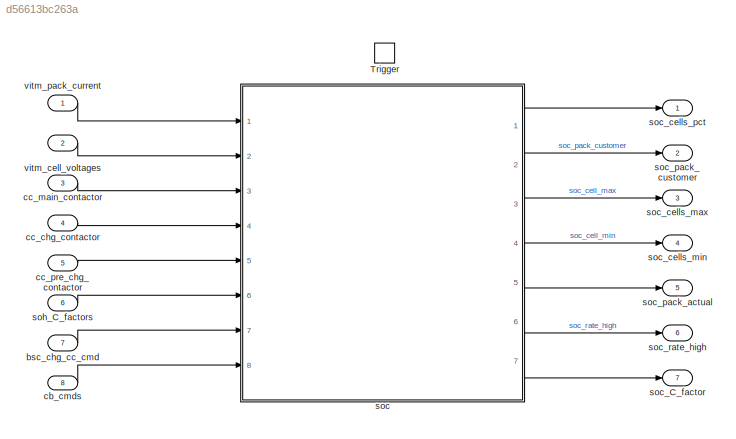
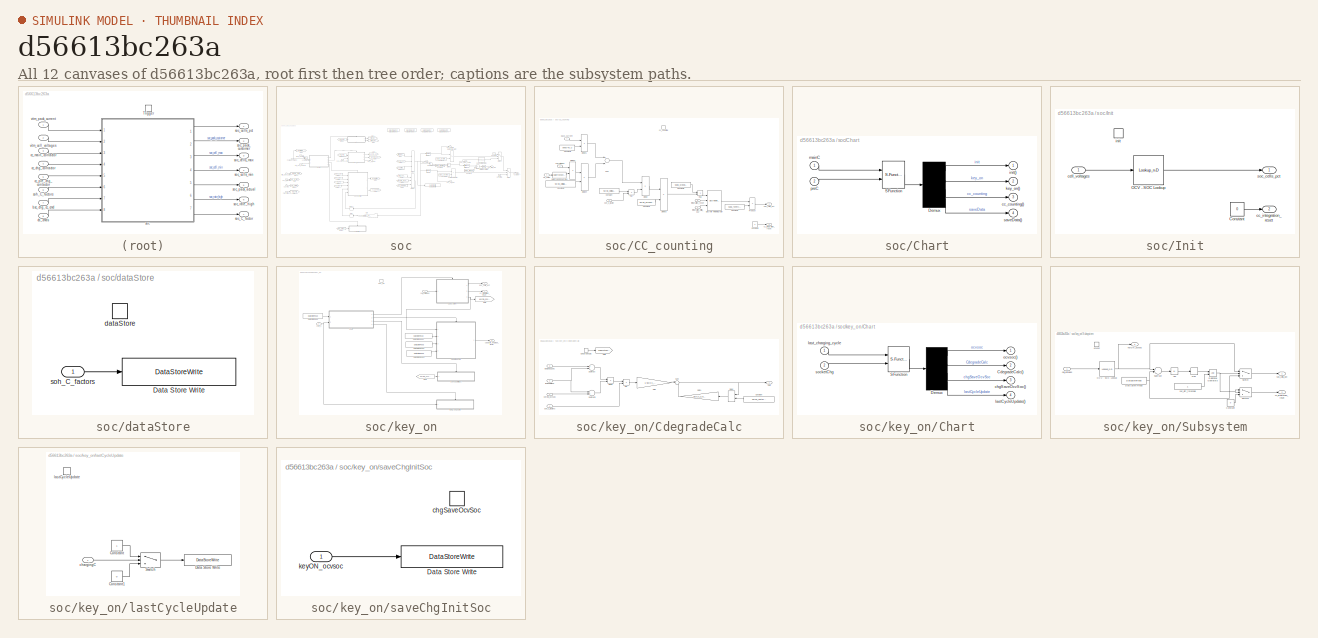
[diagram: thumbnail index - all 12 canvases of the model, root first then tree order]
MODEL slx_d56613bc263a
KIND model
CONFIG AbsTol = auto
CONFIG FixedStep = 0.01
CONFIG MaxStep = auto
CONFIG MinStep = auto
CONFIG RelTol = 1e-3
CONFIG SampleTimeConstraint = Unconstrained
CONFIG Solver = ode4
CONFIG SolverMode = Auto
CONFIG SolverName = ode4
CONFIG StartTime = 0.0
CONFIG StopTime = 10.0
BLOCK [TriggerPort] Trigger
  PortDimensions = 1
  Ports = []
  StatesWhenEnabling = held
  TriggerType = function-call
BLOCK [Inport] bsc_chg_cc_cmd
  IconDisplay = Port number
  Port = 7
BLOCK [Inport] cb_cmds
  IconDisplay = Port number
  OutDataTypeStr = boolean
  Port = 8
  PortDimensions = 40
BLOCK [Inport] cc_chg_contactor
  IconDisplay = Port number
  Port = 4
BLOCK [Inport] cc_main_contactor
  IconDisplay = Port number
  Port = 3
BLOCK [Inport] cc_pre_chg_contactor
  IconDisplay = Port number
  Port = 5
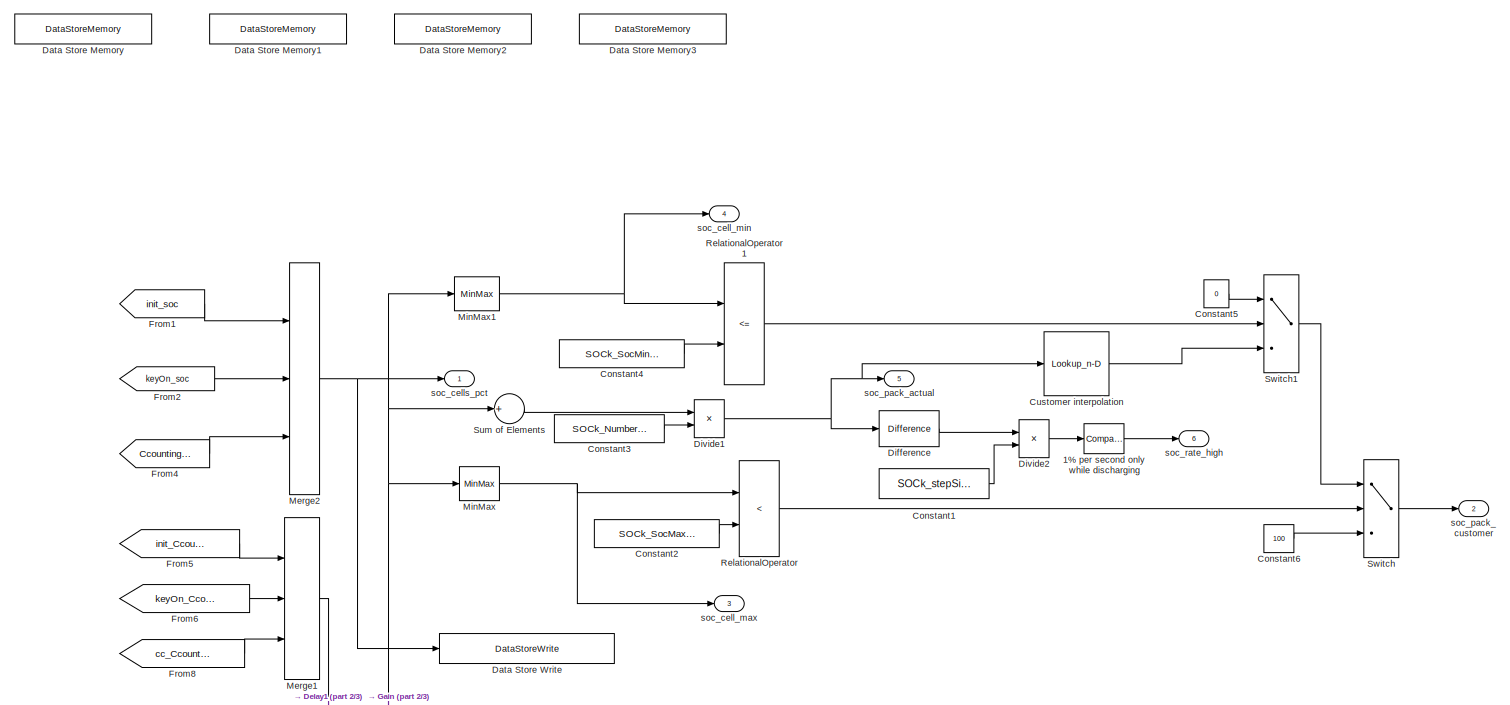
[diagram: soc - part 1/3, top right region]
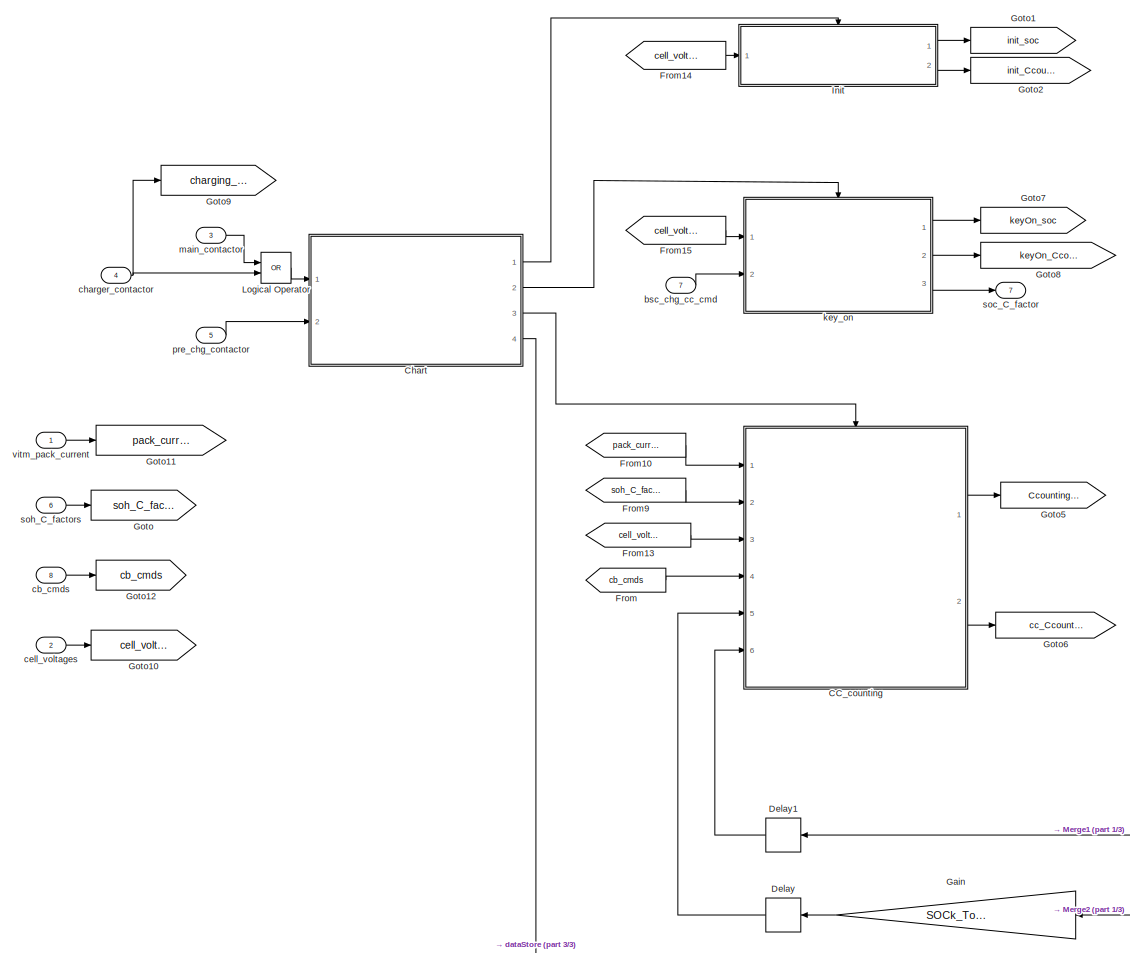
[diagram: soc - part 2/3, left side, full height]
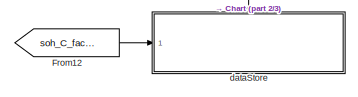
[diagram: soc - part 3/3, bottom left region]
BLOCK [SubSystem] soc
  Ports = [8, 7]
  RequestExecContextInheritance = off
  TreatAsAtomicUnit = on
  Variant = off
BLOCK [Reference] soc/1% per second only while discharging  REF=simulink/Logic and Bit
Operations/Compare
To Constant
  Ports = [1, 1]
  SourceBlock = simulink/Logic and Bit\nOperations/Compare\nTo Constant
  SourceType = Compare To Constant
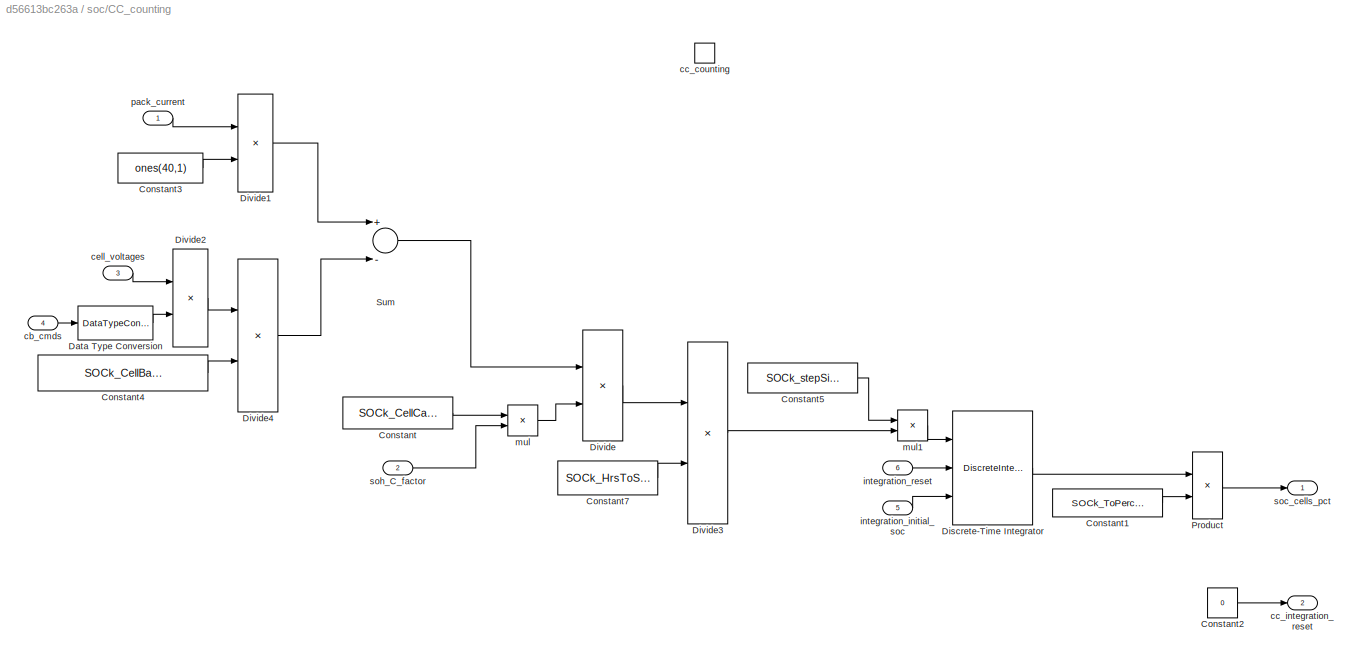
BLOCK [SubSystem] soc/CC_counting
  Ports = [6, 2, 0, 1]
  RequestExecContextInheritance = off
  Variant = off
BLOCK [Constant] soc/CC_counting/Constant
  Value = SOCk_CellCapacity
BLOCK [Constant] soc/CC_counting/Constant1
  Value = SOCk_ToPercentage
BLOCK [Constant] soc/CC_counting/Constant2
  Value = 0
BLOCK [Constant] soc/CC_counting/Constant3
  Value = ones(40,1)
BLOCK [Constant] soc/CC_counting/Constant4
  Value = SOCk_CellBalancingResistor
BLOCK [Constant] soc/CC_counting/Constant5
  SampleTime = -1
  Value = SOCk_stepSize
BLOCK [Constant] soc/CC_counting/Constant7
  Value = SOCk_HrsToSec
BLOCK [DataTypeConversion] soc/CC_counting/Data Type Conversion
  RndMeth = Floor
  SaturateOnIntegerOverflow = off
BLOCK [DiscreteIntegrator] soc/CC_counting/Discrete-Time Integrator
  ExternalReset = rising
  ICPrevOutput = DiscIntNeverNeededParam
  ICPrevScaledInput = DiscIntNeverNeededParam
  InitialConditionSetting = State (most efficient)
  InitialConditionSource = external
  IntegratorMethod = Accumulation: Trapezoidal
  LimitOutput = on
  Ports = [3, 1]
  SampleTime = -1
BLOCK [Product] soc/CC_counting/Divide
  InputSameDT = off
  Inputs = */
  OutDataTypeStr = Inherit: Inherit via internal rule
  Ports = [2, 1]
  RndMeth = Floor
  SaturateOnIntegerOverflow = off
BLOCK [Product] soc/CC_counting/Divide1
  InputSameDT = off
  Inputs = **
  OutDataTypeStr = Inherit: Inherit via internal rule
  Ports = [2, 1]
  RndMeth = Floor
  SaturateOnIntegerOverflow = off
BLOCK [Product] soc/CC_counting/Divide2
  InputSameDT = off
  Inputs = **
  OutDataTypeStr = Inherit: Inherit via internal rule
  Ports = [2, 1]
  RndMeth = Floor
  SaturateOnIntegerOverflow = off
BLOCK [Product] soc/CC_counting/Divide3
  InputSameDT = off
  Inputs = */
  OutDataTypeStr = Inherit: Inherit via internal rule
  Ports = [2, 1]
  RndMeth = Floor
  SaturateOnIntegerOverflow = off
BLOCK [Product] soc/CC_counting/Divide4
  InputSameDT = off
  Inputs = */
  OutDataTypeStr = Inherit: Inherit via internal rule
  Ports = [2, 1]
  RndMeth = Floor
  SaturateOnIntegerOverflow = off
BLOCK [Product] soc/CC_counting/Product
  InputSameDT = off
  OutDataTypeStr = Inherit: Inherit via internal rule
  Ports = [2, 1]
  SaturateOnIntegerOverflow = off
BLOCK [Sum] soc/CC_counting/Sum
  InputSameDT = off
  Inputs = +-
  OutDataTypeStr = Inherit: Inherit via internal rule
  Ports = [2, 1]
  SaturateOnIntegerOverflow = off
BLOCK [Inport] soc/CC_counting/cb_cmds
  IconDisplay = Port number
  Port = 4
BLOCK [TriggerPort] soc/CC_counting/cc_counting
  PortDimensions = 1
  Ports = []
  StatesWhenEnabling = held
  TriggerType = function-call
BLOCK [Outport] soc/CC_counting/cc_integration_reset
  IconDisplay = Port number
  Port = 2
BLOCK [Inport] soc/CC_counting/cell_voltages
  IconDisplay = Port number
  Port = 3
BLOCK [Inport] soc/CC_counting/integration_initial_soc
  IconDisplay = Port number
  Port = 5
BLOCK [Inport] soc/CC_counting/integration_reset
  IconDisplay = Port number
  Port = 6
BLOCK [Product] soc/CC_counting/mul
  InputSameDT = off
  Inputs = **
  OutDataTypeStr = Inherit: Inherit via internal rule
  Ports = [2, 1]
  RndMeth = Floor
  SaturateOnIntegerOverflow = off
BLOCK [Product] soc/CC_counting/mul1
  InputSameDT = off
  Inputs = **
  OutDataTypeStr = Inherit: Inherit via internal rule
  Ports = [2, 1]
  RndMeth = Floor
  SaturateOnIntegerOverflow = off
BLOCK [Inport] soc/CC_counting/pack_current
  IconDisplay = Port number
BLOCK [Outport] soc/CC_counting/soc_cells_pct
  IconDisplay = Port number
BLOCK [Inport] soc/CC_counting/soh_C_factor 
  IconDisplay = Port number
  Port = 2
BLOCK [SubSystem] soc/Chart
  ErrorFcn = Stateflow.Translate.translate
  PermitHierarchicalResolution = ExplicitOnly
  Ports = [2, 4]
  RequestExecContextInheritance = off
  SFBlockType = Chart
  TreatAsAtomicUnit = on
  Variant = off
BLOCK [Demux] soc/Chart/ Demux 
  Ports = [1, 4]
BLOCK [S-Function] soc/Chart/ SFunction 
  EnableBusSupport = on
  FunctionName = sf_sfun
  PortCounts = [2 1]
  Ports = [2, 1]
  SFunctionDeploymentMode = off
  Tag = Stateflow S-Function SOC 3
BLOCK [Outport] soc/Chart/cc_counting()
  IconDisplay = Port number
  Port = 3
BLOCK [Outport] soc/Chart/init()
  IconDisplay = Port number
BLOCK [Outport] soc/Chart/key_on()
  IconDisplay = Port number
  Port = 2
BLOCK [Inport] soc/Chart/mainC
  IconDisplay = Port number
BLOCK [Inport] soc/Chart/preC
  IconDisplay = Port number
  Port = 2
BLOCK [Outport] soc/Chart/saveData()
  IconDisplay = Port number
  Port = 4
BLOCK [Constant] soc/Constant1
  SampleTime = -1
  Value = SOCk_stepSize
BLOCK [Constant] soc/Constant2
  Value = SOCk_SocMaxPercentage
BLOCK [Constant] soc/Constant3
  Value = SOCk_NumberInSeries
BLOCK [Constant] soc/Constant4
  Value = SOCk_SocMinPercentage
BLOCK [Constant] soc/Constant5
  Value = 0
BLOCK [Constant] soc/Constant6
  Value = 100
BLOCK [Lookup_n-D] soc/Customer interpolation
  BreakpointsForDimension1 = [SOCk_SocMinPercentage SOCk_SocMaxPercentage]
  InternalRulePriority = Speed
  NumberOfTableDimensions = 1
  Ports = [1, 1]
  RndMeth = Simplest
  Table = [0 100]
BLOCK [DataStoreMemory] soc/Data Store Memory
  DataStoreName = CCounting_soc_store
  InitialValue = SOCv_InitalSOC
  ReadBeforeWriteMsg = warning
  WriteAfterReadMsg = warning
  WriteAfterWriteMsg = warning
BLOCK [DataStoreMemory] soc/Data Store Memory1
  DataStoreName = charging_initial_soc
  InitialValue = SOCv_InitalSOC
  ReadBeforeWriteMsg = warning
  WriteAfterReadMsg = warning
  WriteAfterWriteMsg = warning
BLOCK [DataStoreMemory] soc/Data Store Memory2
  DataStoreName = last_cycle_charging
  ReadBeforeWriteMsg = warning
  WriteAfterReadMsg = warning
  WriteAfterWriteMsg = warning
BLOCK [DataStoreMemory] soc/Data Store Memory3
  DataStoreName = memStore_Cfactors
  InitialValue = SOCv_factoryInitSohC
  ReadBeforeWriteMsg = warning
  WriteAfterReadMsg = warning
  WriteAfterWriteMsg = warning
BLOCK [DataStoreWrite] soc/Data Store Write
  DataStoreName = CCounting_soc_store
  Ports = [1]
BLOCK [Delay] soc/Delay
  DelayLength = 1
  InitialCondition = SOCv_InitalSOC
  InputPortMap = u0
  Ports = [1, 1]
BLOCK [Delay] soc/Delay1
  DelayLength = 1
  InitialCondition = 0
  InputPortMap = u0
  Ports = [1, 1]
BLOCK [Reference] soc/Difference  REF=simulink/Discrete/Difference
  Ports = [1, 1]
  SourceBlock = simulink/Discrete/Difference
  SourceType = Difference
BLOCK [Product] soc/Divide1
  InputSameDT = off
  Inputs = */
  OutDataTypeStr = Inherit: Inherit via internal rule
  Ports = [2, 1]
  RndMeth = Floor
  SaturateOnIntegerOverflow = off
BLOCK [Product] soc/Divide2
  InputSameDT = off
  Inputs = */
  OutDataTypeStr = Inherit: Inherit via internal rule
  Ports = [2, 1]
  RndMeth = Floor
  SaturateOnIntegerOverflow = off
BLOCK [From] soc/From
  GotoTag = cb_cmds
BLOCK [From] soc/From1
  GotoTag = init_soc
BLOCK [From] soc/From10
  GotoTag = pack_current
BLOCK [From] soc/From12
  GotoTag = soh_C_factors
BLOCK [From] soc/From13
  GotoTag = cell_voltages
BLOCK [From] soc/From14
  GotoTag = cell_voltages
BLOCK [From] soc/From15
  GotoTag = cell_voltages
BLOCK [From] soc/From2
  GotoTag = keyOn_soc
BLOCK [From] soc/From4
  GotoTag = Ccounting_soc
BLOCK [From] soc/From5
  GotoTag = init_Ccounting_reset
BLOCK [From] soc/From6
  GotoTag = keyOn_Ccounting_reset
BLOCK [From] soc/From8
  GotoTag = cc_Ccounting_reset
BLOCK [From] soc/From9
  GotoTag = soh_C_factors
BLOCK [Gain] soc/Gain
  Gain = SOCk_ToFractionFromPercentage
  OutDataTypeStr = Inherit: Inherit via internal rule
  ParamDataTypeStr = Inherit: Inherit via internal rule
  SaturateOnIntegerOverflow = off
BLOCK [Goto] soc/Goto
  GotoTag = soh_C_factors
BLOCK [Goto] soc/Goto1
  GotoTag = init_soc
BLOCK [Goto] soc/Goto10
  GotoTag = cell_voltages
BLOCK [Goto] soc/Goto11
  GotoTag = pack_current
BLOCK [Goto] soc/Goto12
  GotoTag = cb_cmds
BLOCK [Goto] soc/Goto2
  GotoTag = init_Ccounting_reset
BLOCK [Goto] soc/Goto5
  GotoTag = Ccounting_soc
BLOCK [Goto] soc/Goto6
  GotoTag = cc_Ccounting_reset
BLOCK [Goto] soc/Goto7
  GotoTag = keyOn_soc
BLOCK [Goto] soc/Goto8
  GotoTag = keyOn_Ccounting_reset
BLOCK [Goto] soc/Goto9
  GotoTag = charging_contactor
BLOCK [SubSystem] soc/Init
  Ports = [1, 2, 0, 1]
  RequestExecContextInheritance = off
  Variant = off
BLOCK [Constant] soc/Init/Constant
  Value = 0
BLOCK [Lookup_n-D] soc/Init/OCV - SOC Lookup
  BreakpointsForDimension1 = C_OcvTable
  BreakpointsForDimension1FirstPoint = 10
  BreakpointsForDimension1Spacing = 12
  BreakpointsForDimension2FirstPoint = 10
  BreakpointsForDimension2Spacing = 12
  DiagnosticForOutOfRangeInput = Error
  ExtrapMethod = Clip
  IndexSearchMethod = Evenly spaced points
  InternalRulePriority = Speed
  NumberOfTableDimensions = 1
  Ports = [1, 1]
  RndMeth = Simplest
  Table = C_SocTable
BLOCK [Outport] soc/Init/cc_integration_reset
  IconDisplay = Port number
  Port = 2
BLOCK [Inport] soc/Init/cell_voltages
  IconDisplay = Port number
BLOCK [TriggerPort] soc/Init/init
  PortDimensions = 1
  Ports = []
  StatesWhenEnabling = held
  TriggerType = function-call
BLOCK [Outport] soc/Init/soc_cells_pct
  IconDisplay = Port number
BLOCK [Logic] soc/Logical Operator
  AllPortsSameDT = off
  Operator = OR
  OutDataTypeStr = boolean
  Ports = [2, 1]
BLOCK [Merge] soc/Merge1
  Inputs = 3
  Ports = [3, 1]
BLOCK [Merge] soc/Merge2
  Inputs = 3
  Ports = [3, 1]
BLOCK [MinMax] soc/MinMax
  Function = max
  InputSameDT = off
  Ports = [1, 1]
  SaturateOnIntegerOverflow = off
BLOCK [MinMax] soc/MinMax1
  InputSameDT = off
  Ports = [1, 1]
  SaturateOnIntegerOverflow = off
BLOCK [RelationalOperator] soc/RelationalOperator
  InputSameDT = off
  Operator = <
  OutDataTypeStr = boolean
  Ports = [2, 1]
BLOCK [RelationalOperator] soc/RelationalOperator1
  InputSameDT = off
  Operator = <=
  OutDataTypeStr = boolean
  Ports = [2, 1]
BLOCK [Sum] soc/Sum of Elements
  InputSameDT = off
  Inputs = +
  OutDataTypeStr = Inherit: Inherit via internal rule
  Ports = [1, 1]
  SaturateOnIntegerOverflow = off
BLOCK [Switch] soc/Switch
  Criteria = u2 ~= 0
  InputSameDT = off
  SaturateOnIntegerOverflow = off
BLOCK [Switch] soc/Switch1
  Criteria = u2 ~= 0
  InputSameDT = off
  SaturateOnIntegerOverflow = off
BLOCK [Inport] soc/bsc_chg_cc_cmd
  IconDisplay = Port number
  Port = 7
BLOCK [Inport] soc/cb_cmds
  IconDisplay = Port number
  Port = 8
BLOCK [Inport] soc/cell_voltages
  IconDisplay = Port number
  Port = 2
  PortDimensions = 40
BLOCK [Inport] soc/charger_contactor
  IconDisplay = Port number
  Port = 4
BLOCK [SubSystem] soc/dataStore
  Ports = [1, 0, 0, 1]
  RequestExecContextInheritance = off
  Variant = off
BLOCK [DataStoreWrite] soc/dataStore/Data Store Write
  DataStoreName = memStore_Cfactors
  Ports = [1]
BLOCK [TriggerPort] soc/dataStore/dataStore
  PortDimensions = 1
  Ports = []
  StatesWhenEnabling = held
  TriggerType = function-call
BLOCK [Inport] soc/dataStore/soh_C_factors
  IconDisplay = Port number
BLOCK [SubSystem] soc/key_on
  Ports = [2, 3, 0, 1]
  RequestExecContextInheritance = off
  Variant = off
BLOCK [SubSystem] soc/key_on/CdegradeCalc
  Ports = [4, 1, 0, 1]
  RequestExecContextInheritance = off
  Variant = off
BLOCK [TriggerPort] soc/key_on/CdegradeCalc/CdegradeCalc
  PortDimensions = 1
  Ports = [0, 1]
  ShowOutputPort = on
  StatesWhenEnabling = held
  TriggerType = function-call
BLOCK [Constant] soc/key_on/CdegradeCalc/Constant
  SampleTime = -1
  Value = SOCv_factoryInitSohC
BLOCK [Delay] soc/key_on/CdegradeCalc/Delay
  DelayLength = 1
  InitialCondition = ones(40,1)
  InitialConditionSource = Input port
  InputPortMap = u0,p4
  Ports = [2, 1]
BLOCK [Product] soc/key_on/CdegradeCalc/Divide
  InputSameDT = off
  Inputs = */
  OutDataTypeStr = Inherit: Inherit via internal rule
  Ports = [2, 1]
  RndMeth = Floor
  SaturateOnIntegerOverflow = off
BLOCK [Gain] soc/key_on/CdegradeCalc/Gain
  Gain = 1-SOCc_CapacityFilterCoeff
  OutDataTypeStr = Inherit: Inherit via internal rule
  ParamDataTypeStr = Inherit: Inherit via internal rule
  SaturateOnIntegerOverflow = off
BLOCK [Gain] soc/key_on/CdegradeCalc/Gain1
  Gain = SOCc_CapacityFilterCoeff
  OutDataTypeStr = Inherit: Inherit via internal rule
  ParamDataTypeStr = Inherit: Inherit via internal rule
  SaturateOnIntegerOverflow = off
BLOCK [Goto] soc/key_on/CdegradeCalc/Goto
  GotoTag = subsystem_trig
BLOCK [Product] soc/key_on/CdegradeCalc/Mul
  InputSameDT = off
  Inputs = **
  OutDataTypeStr = Inherit: Inherit via internal rule
  Ports = [2, 1]
  RndMeth = Floor
  SaturateOnIntegerOverflow = off
BLOCK [Outport] soc/key_on/CdegradeCalc/Out1
  IconDisplay = Port number
  InitialOutput = ones(40,1)
BLOCK [Sum] soc/key_on/CdegradeCalc/Subtract
  InputSameDT = off
  Inputs = +-
  OutDataTypeStr = Inherit: Inherit via internal rule
  Ports = [2, 1]
  SaturateOnIntegerOverflow = off
BLOCK [Sum] soc/key_on/CdegradeCalc/Subtract1
  InputSameDT = off
  Inputs = -+
  OutDataTypeStr = Inherit: Inherit via internal rule
  Ports = [2, 1]
  SaturateOnIntegerOverflow = off
BLOCK [Sum] soc/key_on/CdegradeCalc/Sum
  IconShape = round
  InputSameDT = off
  Inputs = |++
  OutDataTypeStr = Inherit: Inherit via internal rule
  Ports = [2, 1]
  SaturateOnIntegerOverflow = off
BLOCK [Inport] soc/key_on/CdegradeCalc/keyON_ocvsoc
  IconDisplay = Port number
BLOCK [Inport] soc/key_on/CdegradeCalc/lastChgCCsoc
  IconDisplay = Port number
  Port = 3
BLOCK [Inport] soc/key_on/CdegradeCalc/lastChgInitsoc
  IconDisplay = Port number
  Port = 2
BLOCK [Inport] soc/key_on/CdegradeCalc/soh_C_factors
  IconDisplay = Port number
  Port = 4
BLOCK [SubSystem] soc/key_on/Chart
  ErrorFcn = Stateflow.Translate.translate
  PermitHierarchicalResolution = ExplicitOnly
  Ports = [2, 4]
  RequestExecContextInheritance = off
  SFBlockType = Chart
  TreatAsAtomicUnit = on
  Variant = off
BLOCK [Demux] soc/key_on/Chart/ Demux 
  Ports = [1, 4]
BLOCK [S-Function] soc/key_on/Chart/ SFunction 
  EnableBusSupport = on
  FunctionName = sf_sfun
  PortCounts = [2 1]
  Ports = [2, 1]
  SFunctionDeploymentMode = off
  Tag = Stateflow S-Function SOC 1
BLOCK [Outport] soc/key_on/Chart/CdegradeCalc()
  IconDisplay = Port number
  Port = 2
BLOCK [Outport] soc/key_on/Chart/chgSaveOcvSoc()
  IconDisplay = Port number
  Port = 3
BLOCK [Outport] soc/key_on/Chart/lastCycleUpdate()
  IconDisplay = Port number
  Port = 4
BLOCK [Inport] soc/key_on/Chart/last_charging_cycle
  IconDisplay = Port number
BLOCK [Outport] soc/key_on/Chart/ocvsoc()
  IconDisplay = Port number
BLOCK [Inport] soc/key_on/Chart/socketChg
  IconDisplay = Port number
  Port = 2
BLOCK [DataStoreRead] soc/key_on/Data Store Read
  DataStoreName = last_cycle_charging
  Ports = [0, 1]
BLOCK [DataStoreRead] soc/key_on/Data Store Read1
  DataStoreName = CCounting_soc_store
  Ports = [0, 1]
BLOCK [DataStoreRead] soc/key_on/Data Store Read2
  DataStoreName = charging_initial_soc
  Ports = [0, 1]
BLOCK [DataStoreRead] soc/key_on/Data Store Read3
  DataStoreName = memStore_Cfactors
  Ports = [0, 1]
BLOCK [From] soc/key_on/From
  GotoTag = keyON_ocvsoc
BLOCK [Goto] soc/key_on/Goto
  GotoTag = keyON_ocvsoc
BLOCK [SubSystem] soc/key_on/Subsystem
  Ports = [1, 3, 0, 1]
  RequestExecContextInheritance = off
  Variant = off
BLOCK [Abs] soc/key_on/Subsystem/Abs
  SaturateOnIntegerOverflow = off
BLOCK [Constant] soc/key_on/Subsystem/Constant
  Value = 0
BLOCK [DataStoreRead] soc/key_on/Subsystem/Data Store Read
  DataStoreName = CCounting_soc_store
  Ports = [0, 1]
BLOCK [Lookup_n-D] soc/key_on/Subsystem/OCV - SOC Lookup
  BreakpointsForDimension1 = C_OcvTable
  BreakpointsForDimension1FirstPoint = 10
  BreakpointsForDimension1Spacing = 12
  BreakpointsForDimension2FirstPoint = 10
  BreakpointsForDimension2Spacing = 12
  DiagnosticForOutOfRangeInput = Error
  ExtrapMethod = Clip
  IndexSearchMethod = Evenly spaced points
  InternalRulePriority = Speed
  NumberOfTableDimensions = 1
  Ports = [1, 1]
  RndMeth = Simplest
  Table = C_SocTable
BLOCK [RelationalOperator] soc/key_on/Subsystem/Relational Operator3
  InputSameDT = off
  OutDataTypeStr = boolean
  Ports = [2, 1]
BLOCK [Sum] soc/key_on/Subsystem/Subtract
  InputSameDT = off
  Inputs = +-
  OutDataTypeStr = Inherit: Inherit via internal rule
  Ports = [2, 1]
  SaturateOnIntegerOverflow = off
BLOCK [Switch] soc/key_on/Subsystem/Switch
  Criteria = u2 > Threshold
  InputSameDT = off
  SaturateOnIntegerOverflow = off
  Threshold = 0.5
BLOCK [Switch] soc/key_on/Subsystem/Switch1
  Criteria = u2 > Threshold
  InputSameDT = off
  SaturateOnIntegerOverflow = off
  Threshold = 0.5
BLOCK [Outport] soc/key_on/Subsystem/cc_integration_reset
  IconDisplay = Port number
  Port = 2
BLOCK [Inport] soc/key_on/Subsystem/cell_voltages
  IconDisplay = Port number
BLOCK [Outport] soc/key_on/Subsystem/keyON_ocvsoc
  IconDisplay = Port number
  Port = 3
BLOCK [MinMax] soc/key_on/Subsystem/max
  Function = max
  InputSameDT = off
  Ports = [1, 1]
  SaturateOnIntegerOverflow = off
BLOCK [TriggerPort] soc/key_on/Subsystem/ocvsoc
  PortDimensions = 1
  Ports = []
  StatesWhenEnabling = held
  TriggerType = function-call
BLOCK [Outport] soc/key_on/Subsystem/soc_cells_pct
  IconDisplay = Port number
BLOCK [Constant] soc/key_on/Subsystem/soc_diff_threshold
BLOCK [Outport] soc/key_on/capacity_degrade_factor
  IconDisplay = Port number
  InitialOutput = ones(40,1)
  Port = 3
BLOCK [Outport] soc/key_on/cc_integration_reset
  IconDisplay = Port number
  Port = 2
BLOCK [Inport] soc/key_on/cell_voltages
  IconDisplay = Port number
BLOCK [Inport] soc/key_on/chg_c
  IconDisplay = Port number
  Port = 2
BLOCK [TriggerPort] soc/key_on/key_on
  PortDimensions = 1
  Ports = []
  StatesWhenEnabling = held
  TriggerType = function-call
BLOCK [SubSystem] soc/key_on/lastCycleUpdate
  Ports = [1, 0, 0, 1]
  RequestExecContextInheritance = off
  Variant = off
BLOCK [Constant] soc/key_on/lastCycleUpdate/Constant
BLOCK [Constant] soc/key_on/lastCycleUpdate/Constant1
  Value = 0
BLOCK [DataStoreWrite] soc/key_on/lastCycleUpdate/Data Store Write
  DataStoreName = last_cycle_charging
  Ports = [1]
BLOCK [Switch] soc/key_on/lastCycleUpdate/Switch
  Criteria = u2 > Threshold
  InputSameDT = off
  SaturateOnIntegerOverflow = off
  Threshold = 0.5
BLOCK [Inport] soc/key_on/lastCycleUpdate/chargingC
  IconDisplay = Port number
BLOCK [TriggerPort] soc/key_on/lastCycleUpdate/lastCycleUpdate
  PortDimensions = 1
  Ports = []
  StatesWhenEnabling = held
  TriggerType = function-call
BLOCK [SubSystem] soc/key_on/saveChgInitSoc
  Ports = [1, 0, 0, 1]
  RequestExecContextInheritance = off
  Variant = off
BLOCK [DataStoreWrite] soc/key_on/saveChgInitSoc/Data Store Write
  DataStoreName = charging_initial_soc
  Ports = [1]
BLOCK [TriggerPort] soc/key_on/saveChgInitSoc/chgSaveOcvSoc
  PortDimensions = 1
  Ports = []
  StatesWhenEnabling = held
  TriggerType = function-call
BLOCK [Inport] soc/key_on/saveChgInitSoc/keyON_ocvsoc
  IconDisplay = Port number
BLOCK [Outport] soc/key_on/soc_cells_pct
  IconDisplay = Port number
BLOCK [Inport] soc/main_contactor
  IconDisplay = Port number
  Port = 3
BLOCK [Inport] soc/pre_chg_contactor
  IconDisplay = Port number
  Port = 5
BLOCK [Outport] soc/soc_C_factor
  IconDisplay = Port number
  Port = 7
BLOCK [Outport] soc/soc_cell_max
  IconDisplay = Port number
  Port = 3
BLOCK [Outport] soc/soc_cell_min
  IconDisplay = Port number
  Port = 4
BLOCK [Outport] soc/soc_cells_pct
  IconDisplay = Port number
BLOCK [Outport] soc/soc_pack_actual
  IconDisplay = Port number
  Port = 5
BLOCK [Outport] soc/soc_pack_customer
  IconDisplay = Port number
  Port = 2
BLOCK [Outport] soc/soc_rate_high
  IconDisplay = Port number
  Port = 6
BLOCK [Inport] soc/soh_C_factors
  IconDisplay = Port number
  Port = 6
BLOCK [Inport] soc/vitm_pack_current
  IconDisplay = Port number
BLOCK [Outport] soc_C_factor
  IconDisplay = Port number
  InitialOutput = ones(40,1)
  Port = 7
BLOCK [Outport] soc_cells_max
  IconDisplay = Port number
  Port = 3
BLOCK [Outport] soc_cells_min
  IconDisplay = Port number
  Port = 4
BLOCK [Outport] soc_cells_pct
  IconDisplay = Port number
BLOCK [Outport] soc_pack_actual
  IconDisplay = Port number
  Port = 5
BLOCK [Outport] soc_pack_customer
  IconDisplay = Port number
  Port = 2
BLOCK [Outport] soc_rate_high
  IconDisplay = Port number
  Port = 6
BLOCK [Inport] soh_C_factors
  IconDisplay = Port number
  Port = 6
  PortDimensions = 40
BLOCK [Inport] vitm_cell_voltages
  IconDisplay = Port number
  Port = 2
  PortDimensions = 40
BLOCK [Inport] vitm_pack_current
  IconDisplay = Port number
LINE bsc_chg_cc_cmd:1 -> soc:7
LINE cb_cmds:1 -> soc:8
LINE cc_chg_contactor:1 -> soc:4
LINE cc_main_contactor:1 -> soc:3
LINE cc_pre_chg_contactor:1 -> soc:5
LINE soc/1% per second only while discharging:1 -> soc/soc_rate_high:1
LINE soc/CC_counting/Constant1:1 -> soc/CC_counting/Product:2
LINE soc/CC_counting/Constant2:1 -> soc/CC_counting/cc_integration_reset:1
LINE soc/CC_counting/Constant3:1 -> soc/CC_counting/Divide1:2
LINE soc/CC_counting/Constant4:1 -> soc/CC_counting/Divide4:2
LINE soc/CC_counting/Constant5:1 -> soc/CC_counting/mul1:1
LINE soc/CC_counting/Constant7:1 -> soc/CC_counting/Divide3:2
LINE soc/CC_counting/Constant:1 -> soc/CC_counting/mul:1
LINE soc/CC_counting/Data Type Conversion:1 -> soc/CC_counting/Divide2:2
LINE soc/CC_counting/Discrete-Time Integrator:1 -> soc/CC_counting/Product:1
LINE soc/CC_counting/Divide1:1 -> soc/CC_counting/Sum:1
LINE soc/CC_counting/Divide2:1 -> soc/CC_counting/Divide4:1
LINE soc/CC_counting/Divide3:1 -> soc/CC_counting/mul1:2
LINE soc/CC_counting/Divide4:1 -> soc/CC_counting/Sum:2
LINE soc/CC_counting/Divide:1 -> soc/CC_counting/Divide3:1
LINE soc/CC_counting/Product:1 -> soc/CC_counting/soc_cells_pct:1
LINE soc/CC_counting/Sum:1 -> soc/CC_counting/Divide:1
LINE soc/CC_counting/cb_cmds:1 -> soc/CC_counting/Data Type Conversion:1
LINE soc/CC_counting/cell_voltages:1 -> soc/CC_counting/Divide2:1
LINE soc/CC_counting/integration_initial_soc:1 -> soc/CC_counting/Discrete-Time Integrator:3
LINE soc/CC_counting/integration_reset:1 -> soc/CC_counting/Discrete-Time Integrator:2
LINE soc/CC_counting/mul1:1 -> soc/CC_counting/Discrete-Time Integrator:1
LINE soc/CC_counting/mul:1 -> soc/CC_counting/Divide:2
LINE soc/CC_counting/pack_current:1 -> soc/CC_counting/Divide1:1
LINE soc/CC_counting/soh_C_factor :1 -> soc/CC_counting/mul:2
LINE soc/CC_counting:1 -> soc/Goto5:1
LINE soc/CC_counting:2 -> soc/Goto6:1
LINE soc/Chart:1 -> soc/Init:trigger
LINE soc/Chart:2 -> soc/key_on:trigger
LINE soc/Chart:3 -> soc/CC_counting:trigger
LINE soc/Chart:4 -> soc/dataStore:trigger
LINE soc/Constant1:1 -> soc/Divide2:2
LINE soc/Constant2:1 -> soc/RelationalOperator:2
LINE soc/Constant3:1 -> soc/Divide1:2
LINE soc/Constant4:1 -> soc/RelationalOperator1:2
LINE soc/Constant5:1 -> soc/Switch1:1
LINE soc/Constant6:1 -> soc/Switch:3
LINE soc/Customer interpolation:1 -> soc/Switch1:3
LINE soc/Delay1:1 -> soc/CC_counting:6
LINE soc/Delay:1 -> soc/CC_counting:5
LINE soc/Difference:1 -> soc/Divide2:1
NET soc/Divide1:1 -> soc/Customer interpolation:1, soc/Difference:1, soc/soc_pack_actual:1
LINE soc/Divide2:1 -> soc/1% per second only while discharging:1
LINE soc/From10:1 -> soc/CC_counting:1
LINE soc/From12:1 -> soc/dataStore:1
LINE soc/From13:1 -> soc/CC_counting:3
LINE soc/From14:1 -> soc/Init:1
LINE soc/From15:1 -> soc/key_on:1
LINE soc/From1:1 -> soc/Merge2:1
LINE soc/From2:1 -> soc/Merge2:2
LINE soc/From4:1 -> soc/Merge2:3
LINE soc/From5:1 -> soc/Merge1:1
LINE soc/From6:1 -> soc/Merge1:2
LINE soc/From8:1 -> soc/Merge1:3
LINE soc/From9:1 -> soc/CC_counting:2
LINE soc/From:1 -> soc/CC_counting:4
LINE soc/Gain:1 -> soc/Delay:1
LINE soc/Init/Constant:1 -> soc/Init/cc_integration_reset:1
LINE soc/Init/OCV - SOC Lookup:1 -> soc/Init/soc_cells_pct:1
LINE soc/Init/cell_voltages:1 -> soc/Init/OCV - SOC Lookup:1
LINE soc/Init:1 -> soc/Goto1:1
LINE soc/Init:2 -> soc/Goto2:1
LINE soc/Logical Operator:1 -> soc/Chart:1
LINE soc/Merge1:1 -> soc/Delay1:1
NET soc/Merge2:1 -> soc/Data Store Write:1, soc/Gain:1, soc/MinMax1:1, soc/MinMax:1, soc/Sum of Elements:1, soc/soc_cells_pct:1
NET soc/MinMax1:1 -> soc/RelationalOperator1:1, soc/soc_cell_min:1
NET soc/MinMax:1 -> soc/RelationalOperator:1, soc/soc_cell_max:1
LINE soc/RelationalOperator1:1 -> soc/Switch1:2
LINE soc/RelationalOperator:1 -> soc/Switch:2
LINE soc/Sum of Elements:1 -> soc/Divide1:1
LINE soc/Switch1:1 -> soc/Switch:1
LINE soc/Switch:1 -> soc/soc_pack_customer:1
LINE soc/bsc_chg_cc_cmd:1 -> soc/key_on:2
LINE soc/cb_cmds:1 -> soc/Goto12:1
LINE soc/cell_voltages:1 -> soc/Goto10:1
NET soc/charger_contactor:1 -> soc/Goto9:1, soc/Logical Operator:2
LINE soc/dataStore/soh_C_factors:1 -> soc/dataStore/Data Store Write:1
LINE soc/key_on/CdegradeCalc/CdegradeCalc:1 -> soc/key_on/CdegradeCalc/Goto:1
LINE soc/key_on/CdegradeCalc/Constant:1 -> soc/key_on/CdegradeCalc/Delay:2
LINE soc/key_on/CdegradeCalc/Delay:1 -> soc/key_on/CdegradeCalc/Gain1:1
LINE soc/key_on/CdegradeCalc/Divide:1 -> soc/key_on/CdegradeCalc/Mul:1
LINE soc/key_on/CdegradeCalc/Gain1:1 -> soc/key_on/CdegradeCalc/Sum:2
LINE soc/key_on/CdegradeCalc/Gain:1 -> soc/key_on/CdegradeCalc/Sum:1
LINE soc/key_on/CdegradeCalc/Mul:1 -> soc/key_on/CdegradeCalc/Gain:1
LINE soc/key_on/CdegradeCalc/Subtract1:1 -> soc/key_on/CdegradeCalc/Divide:2
LINE soc/key_on/CdegradeCalc/Subtract:1 -> soc/key_on/CdegradeCalc/Divide:1
NET soc/key_on/CdegradeCalc/Sum:1 -> soc/key_on/CdegradeCalc/Delay:1, soc/key_on/CdegradeCalc/Out1:1
LINE soc/key_on/CdegradeCalc/keyON_ocvsoc:1 -> soc/key_on/CdegradeCalc/Subtract1:2
LINE soc/key_on/CdegradeCalc/lastChgCCsoc:1 -> soc/key_on/CdegradeCalc/Subtract:1
NET soc/key_on/CdegradeCalc/lastChgInitsoc:1 -> soc/key_on/CdegradeCalc/Subtract1:1, soc/key_on/CdegradeCalc/Subtract:2
LINE soc/key_on/CdegradeCalc/soh_C_factors:1 -> soc/key_on/CdegradeCalc/Mul:2
LINE soc/key_on/CdegradeCalc:1 -> soc/key_on/capacity_degrade_factor:1
LINE soc/key_on/Chart:1 -> soc/key_on/Subsystem:trigger
LINE soc/key_on/Chart:2 -> soc/key_on/CdegradeCalc:trigger
LINE soc/key_on/Chart:3 -> soc/key_on/saveChgInitSoc:trigger
LINE soc/key_on/Chart:4 -> soc/key_on/lastCycleUpdate:trigger
LINE soc/key_on/Data Store Read1:1 -> soc/key_on/CdegradeCalc:3
LINE soc/key_on/Data Store Read2:1 -> soc/key_on/CdegradeCalc:2
LINE soc/key_on/Data Store Read3:1 -> soc/key_on/CdegradeCalc:4
LINE soc/key_on/Data Store Read:1 -> soc/key_on/Chart:1
LINE soc/key_on/From:1 -> soc/key_on/saveChgInitSoc:1
LINE soc/key_on/Subsystem/Abs:1 -> soc/key_on/Subsystem/max:1
LINE soc/key_on/Subsystem/Constant:1 -> soc/key_on/Subsystem/Switch1:3
NET soc/key_on/Subsystem/Data Store Read:1 -> soc/key_on/Subsystem/Subtract:2, soc/key_on/Subsystem/Switch:3
NET soc/key_on/Subsystem/OCV - SOC Lookup:1 -> soc/key_on/Subsystem/Subtract:1, soc/key_on/Subsystem/Switch:1, soc/key_on/Subsystem/keyON_ocvsoc:1
NET soc/key_on/Subsystem/Relational Operator3:1 -> soc/key_on/Subsystem/Switch1:1, soc/key_on/Subsystem/Switch1:2, soc/key_on/Subsystem/Switch:2
LINE soc/key_on/Subsystem/Subtract:1 -> soc/key_on/Subsystem/Abs:1
LINE soc/key_on/Subsystem/Switch1:1 -> soc/key_on/Subsystem/cc_integration_reset:1
LINE soc/key_on/Subsystem/Switch:1 -> soc/key_on/Subsystem/soc_cells_pct:1
LINE soc/key_on/Subsystem/cell_voltages:1 -> soc/key_on/Subsystem/OCV - SOC Lookup:1
LINE soc/key_on/Subsystem/max:1 -> soc/key_on/Subsystem/Relational Operator3:1
LINE soc/key_on/Subsystem/soc_diff_threshold:1 -> soc/key_on/Subsystem/Relational Operator3:2
LINE soc/key_on/Subsystem:1 -> soc/key_on/soc_cells_pct:1
LINE soc/key_on/Subsystem:2 -> soc/key_on/cc_integration_reset:1
NET soc/key_on/Subsystem:3 -> soc/key_on/CdegradeCalc:1, soc/key_on/Goto:1
LINE soc/key_on/cell_voltages:1 -> soc/key_on/Subsystem:1
NET soc/key_on/chg_c:1 -> soc/key_on/Chart:2, soc/key_on/lastCycleUpdate:1
LINE soc/key_on/lastCycleUpdate/Constant1:1 -> soc/key_on/lastCycleUpdate/Switch:3
LINE soc/key_on/lastCycleUpdate/Constant:1 -> soc/key_on/lastCycleUpdate/Switch:1
LINE soc/key_on/lastCycleUpdate/Switch:1 -> soc/key_on/lastCycleUpdate/Data Store Write:1
LINE soc/key_on/lastCycleUpdate/chargingC:1 -> soc/key_on/lastCycleUpdate/Switch:2
LINE soc/key_on/saveChgInitSoc/keyON_ocvsoc:1 -> soc/key_on/saveChgInitSoc/Data Store Write:1
LINE soc/key_on:1 -> soc/Goto7:1
LINE soc/key_on:2 -> soc/Goto8:1
LINE soc/key_on:3 -> soc/soc_C_factor:1
LINE soc/main_contactor:1 -> soc/Logical Operator:1
LINE soc/pre_chg_contactor:1 -> soc/Chart:2
LINE soc/soh_C_factors:1 -> soc/Goto:1
LINE soc/vitm_pack_current:1 -> soc/Goto11:1
LINE soc:1 -> soc_cells_pct:1
LINE soc:2 -> soc_pack_customer:1
LINE soc:3 -> soc_cells_max:1
LINE soc:4 -> soc_cells_min:1
LINE soc:5 -> soc_pack_actual:1
LINE soc:6 -> soc_rate_high:1
LINE soc:7 -> soc_C_factor:1
LINE soh_C_factors:1 -> soc:6
LINE vitm_cell_voltages:1 -> soc:2
LINE vitm_pack_current:1 -> soc:1
note: NET lines group one-source signal fan-out (src -> all destinations, sorted); 1:1 wires keep LINE
CHART soc/key_on/Chart states=1 transitions=14
  STATE_LABEL 'keyON'
  STATE_LABEL '{ocvsoc;}'
  STATE_LABEL '[last_charging_cycle == 1]'
  STATE_LABEL '{CdegradeCalc;}'
  STATE_LABEL '[socketChg == 1]'
  STATE_LABEL '{chgSaveOcvSoc;}'
  STATE_LABEL '{lastCycleUpdate;}'
CHART soc/Chart states=5 transitions=18
  STATE_LABEL 'init\n\n'
  STATE_LABEL '{init;}'
  STATE_LABEL 'key_ON'
  STATE_LABEL '{key_on;}'
  STATE_LABEL 'coulomb_counting\n\n'
  STATE_LABEL '{cc_counting;}'
  STATE_LABEL 'dataStore\nentry:'
  STATE_LABEL '{saveData;}'
  STATE_LABEL 'end\nentry:'
